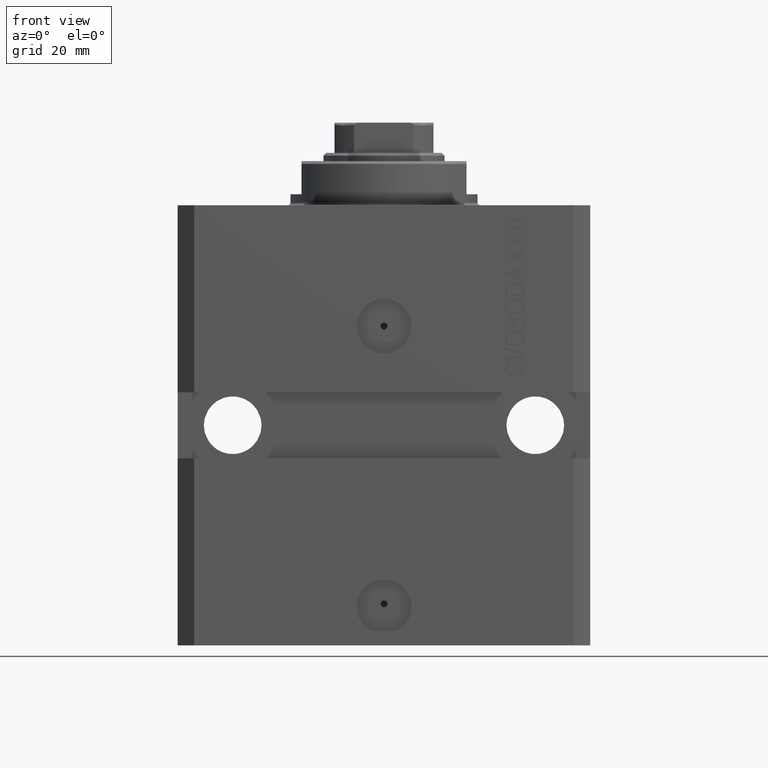
[diagram: clean part render]
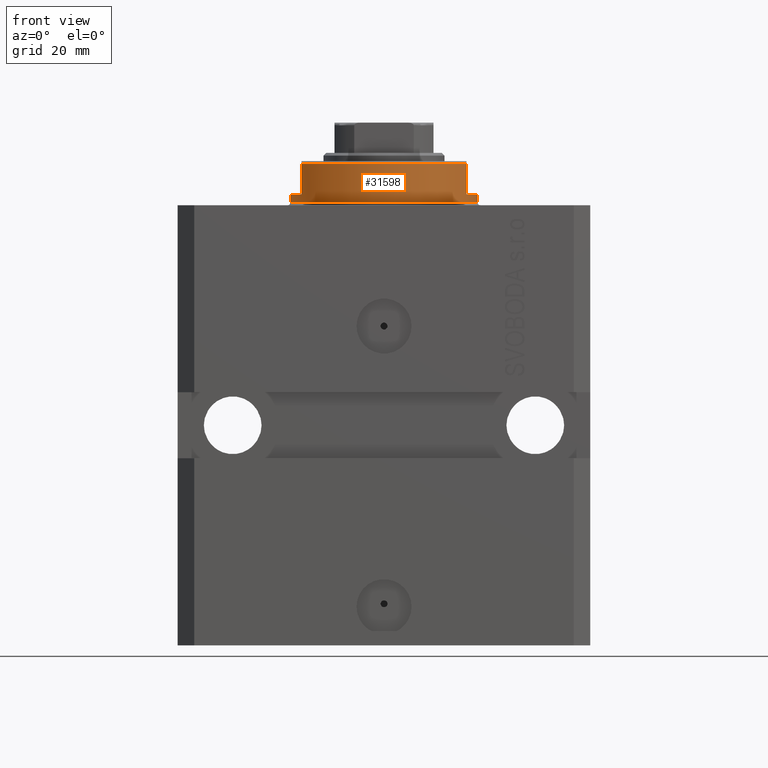
[diagram: same view with one face highlighted and labeled with its STEP entity id]
A machine part, front view. The second image highlights one B-rep face of the part: STEP entity #31598.
In plain terms, the highlighted cylindrical surface (partial cylindrical patch) has radius 17 mm, axis along (0, 0, -1).
Its self-contained STEP definition (entity closure, byte-faithful):
#337 = CARTESIAN_POINT ( 'NONE',  ( 0.000000000000000000, 0.000000000000000000, -7.500000000000007105 ) ) ;
#1688 = ORIENTED_EDGE ( 'NONE', *, *, #18819, .F. ) ;
#2652 = CARTESIAN_POINT ( 'NONE',  ( -17.00000000000000000, 2.081899558550500280E-15, -2.000000000000000000 ) ) ;
#3393 = ORIENTED_EDGE ( 'NONE', *, *, #40684, .T. ) ;
#4506 = ORIENTED_EDGE ( 'NONE', *, *, #26706, .T. ) ;
#4530 = DIRECTION ( 'NONE',  ( 0.000000000000000000, 0.000000000000000000, -1.000000000000000000 ) ) ;
#4705 = DIRECTION ( 'NONE',  ( 0.000000000000000000, 0.000000000000000000, -1.000000000000000000 ) ) ;
#4708 = CIRCLE ( 'NONE', #9665, 17.00000000000000000 ) ;
#5233 = VERTEX_POINT ( 'NONE', #2652 ) ;
#5918 = DIRECTION ( 'NONE',  ( 0.000000000000000000, 0.000000000000000000, -1.000000000000000000 ) ) ;
#6132 = CARTESIAN_POINT ( 'NONE',  ( -17.00000000000000000, 2.081899558550500280E-15, -8.000000000000000000 ) ) ;
#7026 = EDGE_CURVE ( 'NONE', #24185, #36310, #38797, .T. ) ;
#7338 = DIRECTION ( 'NONE',  ( 0.000000000000000000, 0.000000000000000000, -1.000000000000000000 ) ) ;
#7651 = LINE ( 'NONE', #27930, #19701 ) ;
#7673 = DIRECTION ( 'NONE',  ( 0.000000000000000000, 0.000000000000000000, 1.000000000000000000 ) ) ;
#8051 = CARTESIAN_POINT ( 'NONE',  ( -15.00000000000000000, -8.000000000000001776, -8.000000000000000000 ) ) ;
#8527 = VERTEX_POINT ( 'NONE', #23372 ) ;
#8919 = EDGE_CURVE ( 'NONE', #41404, #17216, #7651, .T. ) ;
#9019 = DIRECTION ( 'NONE',  ( -1.000000000000000000, 0.000000000000000000, 0.000000000000000000 ) ) ;
#9665 = AXIS2_PLACEMENT_3D ( 'NONE', #337, #7673, #14558 ) ;
#9827 = AXIS2_PLACEMENT_3D ( 'NONE', #41314, #31475, #41087 ) ;
#11259 = CIRCLE ( 'NONE', #36169, 17.00000000000000000 ) ;
#13456 = LINE ( 'NONE', #6132, #14269 ) ;
#14269 = VECTOR ( 'NONE', #29738, 1000.000000000000000 ) ;
#14558 = DIRECTION ( 'NONE',  ( -1.000000000000000000, 0.000000000000000000, 0.000000000000000000 ) ) ;
#16212 = VECTOR ( 'NONE', #4705, 1000.000000000000000 ) ;
#16663 = CARTESIAN_POINT ( 'NONE',  ( -17.00000000000000000, 2.081899558550500280E-15, -0.5000000000000004441 ) ) ;
#17216 = VERTEX_POINT ( 'NONE', #19565 ) ;
#17339 = DIRECTION ( 'NONE',  ( -1.000000000000000000, 0.000000000000000000, 0.000000000000000000 ) ) ;
#17989 = CARTESIAN_POINT ( 'NONE',  ( 0.000000000000000000, 0.000000000000000000, -2.000000000000000000 ) ) ;
#18648 = DIRECTION ( 'NONE',  ( -0.000000000000000000, -0.000000000000000000, 1.000000000000000000 ) ) ;
#18667 = EDGE_CURVE ( 'NONE', #24185, #5233, #24273, .T. ) ;
#18819 = EDGE_CURVE ( 'NONE', #5233, #40540, #13456, .T. ) ;
#19565 = CARTESIAN_POINT ( 'NONE',  ( 15.00000000000000000, -8.000000000000001776, -7.500000000000007105 ) ) ;
#19701 = VECTOR ( 'NONE', #4530, 1000.000000000000000 ) ;
#20414 = DIRECTION ( 'NONE',  ( -0.000000000000000000, -0.000000000000000000, -1.000000000000000000 ) ) ;
#20782 = CYLINDRICAL_SURFACE ( 'NONE', #9827, 17.00000000000000000 ) ;
#21224 = CARTESIAN_POINT ( 'NONE',  ( -14.99999999999999645, -8.000000000000003553, -2.000000000000000000 ) ) ;
#22765 = VECTOR ( 'NONE', #18648, 1000.000000000000000 ) ;
#23322 = CARTESIAN_POINT ( 'NONE',  ( 14.99999999999999645, -8.000000000000003553, -2.000000000000000000 ) ) ;
#23372 = CARTESIAN_POINT ( 'NONE',  ( 17.00000000000000000, 0.000000000000000000, -2.000000000000000000 ) ) ;
#24185 = VERTEX_POINT ( 'NONE', #21224 ) ;
#24273 = CIRCLE ( 'NONE', #39193, 17.00000000000000000 ) ;
#24515 = VERTEX_POINT ( 'NONE', #34610 ) ;
#25562 = CARTESIAN_POINT ( 'NONE',  ( 17.00000000000000000, 0.000000000000000000, -8.000000000000000000 ) ) ;
#25660 = ORIENTED_EDGE ( 'NONE', *, *, #18667, .F. ) ;
#26706 = EDGE_CURVE ( 'NONE', #36310, #17216, #4708, .T. ) ;
#27689 = FACE_OUTER_BOUND ( 'NONE', #43037, .T. ) ;
#27930 = CARTESIAN_POINT ( 'NONE',  ( 15.00000000000000000, -8.000000000000001776, -8.000000000000000000 ) ) ;
#29738 = DIRECTION ( 'NONE',  ( -0.000000000000000000, -0.000000000000000000, 1.000000000000000000 ) ) ;
#29793 = CIRCLE ( 'NONE', #35504, 17.00000000000000000 ) ;
#30591 = CARTESIAN_POINT ( 'NONE',  ( -15.00000000000000000, -8.000000000000001776, -7.500000000000007105 ) ) ;
#31475 = DIRECTION ( 'NONE',  ( -0.000000000000000000, -0.000000000000000000, 1.000000000000000000 ) ) ;
#31598 = ADVANCED_FACE ( 'NONE', ( #27689 ), #20782, .T. ) ;
#32733 = EDGE_CURVE ( 'NONE', #8527, #41404, #11259, .T. ) ;
#32799 = ORIENTED_EDGE ( 'NONE', *, *, #8919, .F. ) ;
#33594 = CARTESIAN_POINT ( 'NONE',  ( 0.000000000000000000, 0.000000000000000000, -0.5000000000000004441 ) ) ;
#34610 = CARTESIAN_POINT ( 'NONE',  ( 17.00000000000000000, 0.000000000000000000, -0.5000000000000004441 ) ) ;
#35504 = AXIS2_PLACEMENT_3D ( 'NONE', #33594, #20414, #37596 ) ;
#35606 = LINE ( 'NONE', #25562, #22765 ) ;
#35967 = ORIENTED_EDGE ( 'NONE', *, *, #32733, .F. ) ;
#36169 = AXIS2_PLACEMENT_3D ( 'NONE', #17989, #7338, #17339 ) ;
#36310 = VERTEX_POINT ( 'NONE', #30591 ) ;
#36514 = ORIENTED_EDGE ( 'NONE', *, *, #37700, .T. ) ;
#37596 = DIRECTION ( 'NONE',  ( 1.000000000000000000, 0.000000000000000000, 0.000000000000000000 ) ) ;
#37700 = EDGE_CURVE ( 'NONE', #24515, #40540, #29793, .T. ) ;
#38797 = LINE ( 'NONE', #8051, #16212 ) ;
#39193 = AXIS2_PLACEMENT_3D ( 'NONE', #42693, #5918, #9019 ) ;
#40286 = ORIENTED_EDGE ( 'NONE', *, *, #7026, .T. ) ;
#40540 = VERTEX_POINT ( 'NONE', #16663 ) ;
#40684 = EDGE_CURVE ( 'NONE', #8527, #24515, #35606, .T. ) ;
#41087 = DIRECTION ( 'NONE',  ( 1.000000000000000000, 0.000000000000000000, 0.000000000000000000 ) ) ;
#41314 = CARTESIAN_POINT ( 'NONE',  ( 0.000000000000000000, 0.000000000000000000, -8.000000000000000000 ) ) ;
#41404 = VERTEX_POINT ( 'NONE', #23322 ) ;
#42693 = CARTESIAN_POINT ( 'NONE',  ( 0.000000000000000000, 0.000000000000000000, -2.000000000000000000 ) ) ;
#43037 = EDGE_LOOP ( 'NONE', ( #1688, #25660, #40286, #4506, #32799, #35967, #3393, #36514 ) ) ;